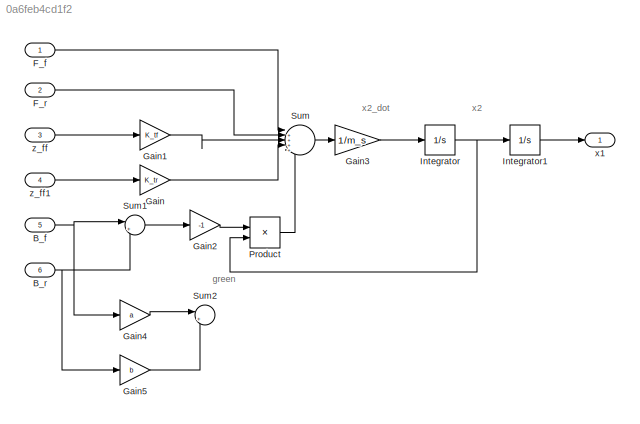
MODEL slx_0a6feb4cd1f2
KIND model
CONFIG AbsTol = auto
CONFIG EnableMultiTasking = off
CONFIG FixedStep = auto
CONFIG MaxStep = auto
CONFIG MinStep = auto
CONFIG RelTol = 1e-3
CONFIG SampleTimeConstraint = Unconstrained
CONFIG SolverName = VariableStepAuto
CONFIG StartTime = 0.0
CONFIG StopTime = 10.0
BLOCK [Inport] B_f
  Port = 5
BLOCK [Inport] B_r
  Port = 6
BLOCK [Inport] F_f
BLOCK [Inport] F_r
  Port = 2
BLOCK [Gain] Gain
  Gain = K_tr
  NameLocation = top
BLOCK [Gain] Gain1
  Gain = K_tf
  NameLocation = top
BLOCK [Gain] Gain2
  Gain = -1
BLOCK [Gain] Gain3
  Gain = 1/m_s
BLOCK [Gain] Gain4
  Gain = a
BLOCK [Gain] Gain5
  Gain = b
BLOCK [Integrator] Integrator
  Ports = [1, 1]
BLOCK [Integrator] Integrator1
  Ports = [1, 1]
BLOCK [Product] Product
  Ports = [2, 1]
BLOCK [Sum] Sum
  Inputs = |+++++
  Ports = [5, 1]
BLOCK [Sum] Sum1
  Inputs = |++
  Ports = [2, 1]
BLOCK [Sum] Sum2
  Inputs = |+-
  Ports = [2, 1]
BLOCK [Outport] x1
BLOCK [Inport] z_ff
  Port = 3
BLOCK [Inport] z_ff1
  Port = 4
ANNOTATION (root): green
ANNOTATION (root): x2
ANNOTATION (root): x2_dot
NET B_f:1 -> Gain4:1, Sum1:1
NET B_r:1 -> Gain5:1, Sum1:2
LINE F_f:1 -> Sum:1
LINE F_r:1 -> Sum:2
LINE Gain1:1 -> Sum:3
LINE Gain2:1 -> Product:1
LINE Gain3:1 -> Integrator:1
LINE Gain4:1 -> Sum2:1
LINE Gain5:1 -> Sum2:2
LINE Gain:1 -> Sum:4
LINE Integrator1:1 -> x1:1
NET Integrator:1 -> Integrator1:1, Product:2
LINE Product:1 -> Sum:5
LINE Sum1:1 -> Gain2:1
LINE Sum:1 -> Gain3:1
LINE z_ff1:1 -> Gain:1
LINE z_ff:1 -> Gain1:1
note: NET lines group one-source signal fan-out (src -> all destinations, sorted); 1:1 wires keep LINE
